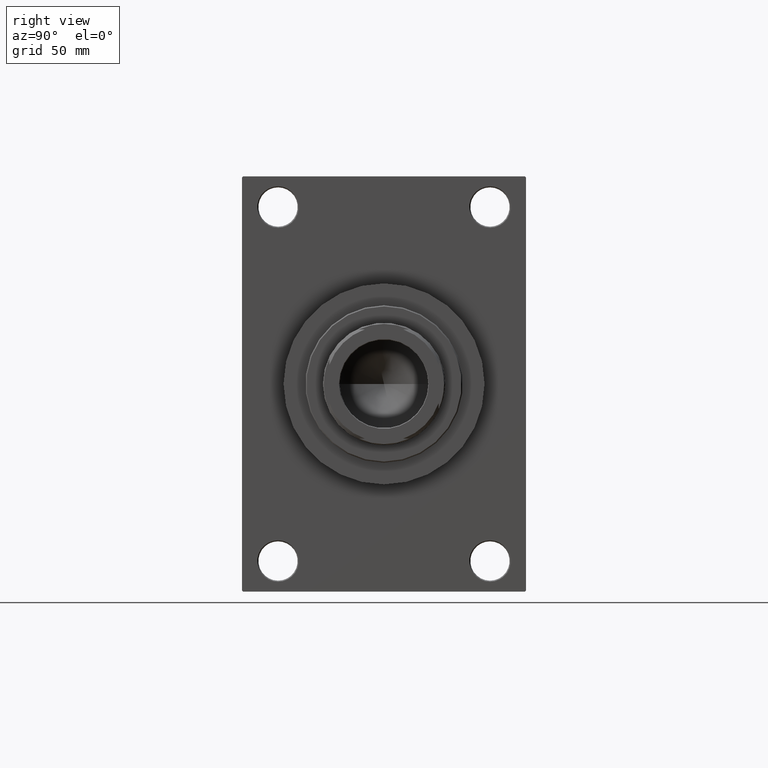
[diagram: clean part render]
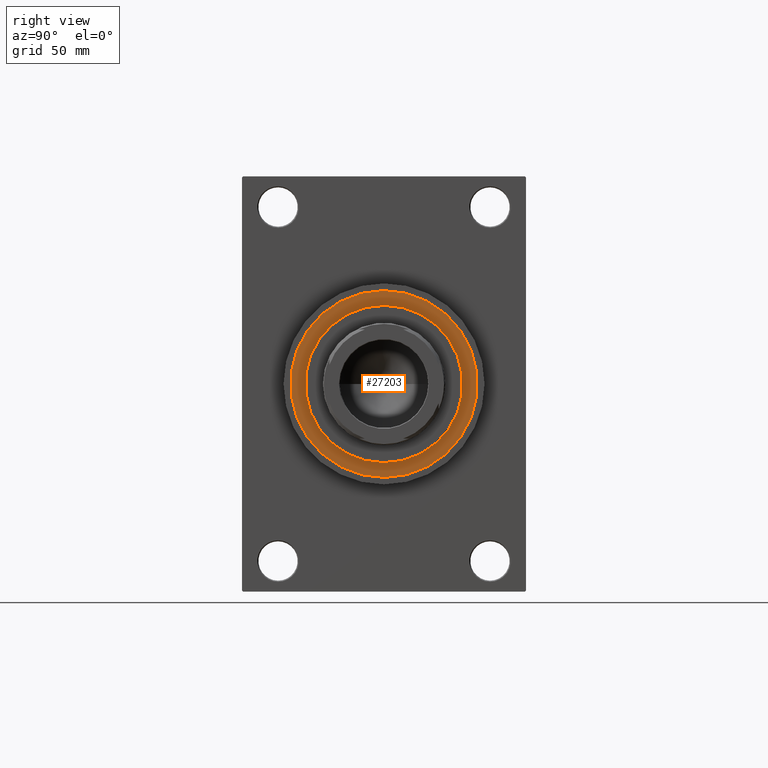
[diagram: same view with one face highlighted and labeled with its STEP entity id]
A machine part, right view. The second image highlights one B-rep face of the part: STEP entity #27203.
In plain terms, the highlighted planar face has unit normal (1, -0, -0).
Its self-contained STEP definition (entity closure, byte-faithful):
#5801 = CARTESIAN_POINT ( 'NONE',  ( 0.000000000000000000, 0.000000000000000000, 43.25999999999999801 ) ) ;
#7119 = ORIENTED_EDGE ( 'NONE', *, *, #12159, .T. ) ;
#9572 = DIRECTION ( 'NONE',  ( 1.000000000000000000, 0.000000000000000000, 0.000000000000000000 ) ) ;
#10080 = AXIS2_PLACEMENT_3D ( 'NONE', #5801, #30912, #43650 ) ;
#10630 = EDGE_LOOP ( 'NONE', ( #35722, #13166 ) ) ;
#10822 = DIRECTION ( 'NONE',  ( 0.000000000000000000, 0.000000000000000000, 1.000000000000000000 ) ) ;
#11466 = AXIS2_PLACEMENT_3D ( 'NONE', #30927, #45681, #38420 ) ;
#11609 = CIRCLE ( 'NONE', #10080, 42.75000000000000000 ) ;
#11880 = VERTEX_POINT ( 'NONE', #42336 ) ;
#12159 = EDGE_CURVE ( 'NONE', #41282, #11880, #13868, .T. ) ;
#13166 = ORIENTED_EDGE ( 'NONE', *, *, #21576, .F. ) ;
#13868 = CIRCLE ( 'NONE', #11466, 42.75000000000000000 ) ;
#15883 = CARTESIAN_POINT ( 'NONE',  ( -36.00000000000000000, 0.000000000000000000, 43.25999999999999801 ) ) ;
#17833 = PLANE ( 'NONE',  #32417 ) ;
#20656 = CARTESIAN_POINT ( 'NONE',  ( 0.000000000000000000, 0.000000000000000000, 43.25999999999999801 ) ) ;
#20907 = DIRECTION ( 'NONE',  ( 0.000000000000000000, 0.000000000000000000, 1.000000000000000000 ) ) ;
#21576 = EDGE_CURVE ( 'NONE', #47260, #27744, #46134, .T. ) ;
#21834 = CARTESIAN_POINT ( 'NONE',  ( 42.75000000000000000, 5.235365066354935472E-15, 43.25999999999999801 ) ) ;
#22190 = AXIS2_PLACEMENT_3D ( 'NONE', #20656, #20907, #9572 ) ;
#23250 = CARTESIAN_POINT ( 'NONE',  ( 36.00000000000000000, 4.408728476930470856E-15, 43.25999999999999801 ) ) ;
#25076 = FACE_OUTER_BOUND ( 'NONE', #29718, .T. ) ;
#25793 = CARTESIAN_POINT ( 'NONE',  ( 0.000000000000000000, 0.000000000000000000, 43.25999999999999801 ) ) ;
#27203 = ADVANCED_FACE ( 'NONE', ( #32337, #25076 ), #17833, .T. ) ;
#27539 = CARTESIAN_POINT ( 'NONE',  ( 0.000000000000000000, 0.000000000000000000, 43.25999999999999801 ) ) ;
#27744 = VERTEX_POINT ( 'NONE', #15883 ) ;
#27787 = DIRECTION ( 'NONE',  ( 1.000000000000000000, 0.000000000000000000, 0.000000000000000000 ) ) ;
#28943 = DIRECTION ( 'NONE',  ( 0.000000000000000000, 0.000000000000000000, 1.000000000000000000 ) ) ;
#29718 = EDGE_LOOP ( 'NONE', ( #34037, #7119 ) ) ;
#30912 = DIRECTION ( 'NONE',  ( 0.000000000000000000, 0.000000000000000000, 1.000000000000000000 ) ) ;
#30927 = CARTESIAN_POINT ( 'NONE',  ( 0.000000000000000000, 0.000000000000000000, 43.25999999999999801 ) ) ;
#31765 = EDGE_CURVE ( 'NONE', #11880, #41282, #11609, .T. ) ;
#32337 = FACE_BOUND ( 'NONE', #10630, .T. ) ;
#32417 = AXIS2_PLACEMENT_3D ( 'NONE', #25793, #28943, #32574 ) ;
#32574 = DIRECTION ( 'NONE',  ( 1.000000000000000000, 0.000000000000000000, -0.000000000000000000 ) ) ;
#34037 = ORIENTED_EDGE ( 'NONE', *, *, #31765, .T. ) ;
#35722 = ORIENTED_EDGE ( 'NONE', *, *, #36758, .F. ) ;
#36484 = CIRCLE ( 'NONE', #44958, 36.00000000000000000 ) ;
#36758 = EDGE_CURVE ( 'NONE', #27744, #47260, #36484, .T. ) ;
#38420 = DIRECTION ( 'NONE',  ( 1.000000000000000000, 0.000000000000000000, 0.000000000000000000 ) ) ;
#41282 = VERTEX_POINT ( 'NONE', #21834 ) ;
#42336 = CARTESIAN_POINT ( 'NONE',  ( -42.75000000000000000, 0.000000000000000000, 43.25999999999999801 ) ) ;
#43650 = DIRECTION ( 'NONE',  ( 1.000000000000000000, 0.000000000000000000, 0.000000000000000000 ) ) ;
#44958 = AXIS2_PLACEMENT_3D ( 'NONE', #27539, #10822, #27787 ) ;
#45681 = DIRECTION ( 'NONE',  ( 0.000000000000000000, 0.000000000000000000, 1.000000000000000000 ) ) ;
#46134 = CIRCLE ( 'NONE', #22190, 36.00000000000000000 ) ;
#47260 = VERTEX_POINT ( 'NONE', #23250 ) ;